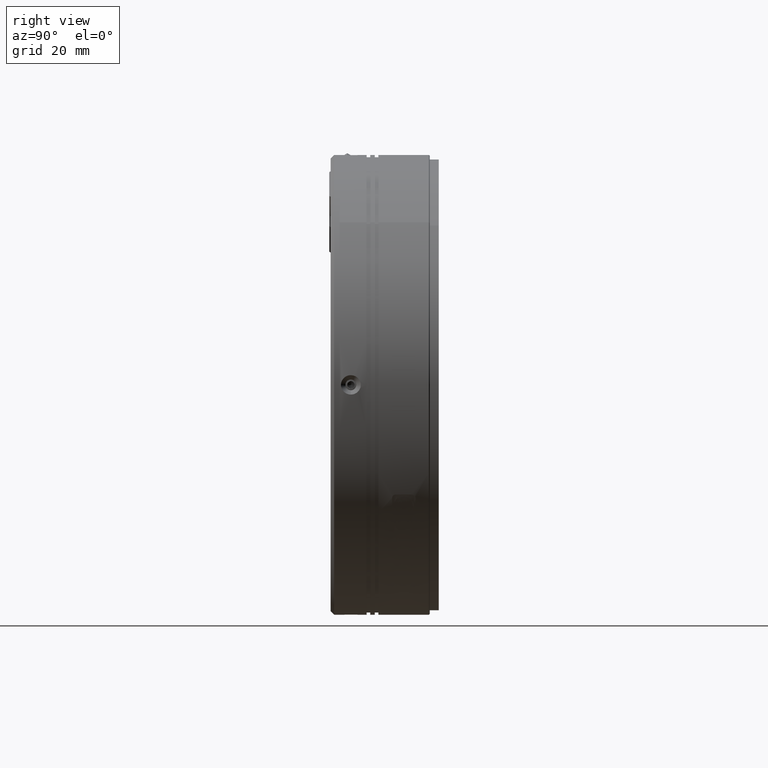
[diagram: clean part render]
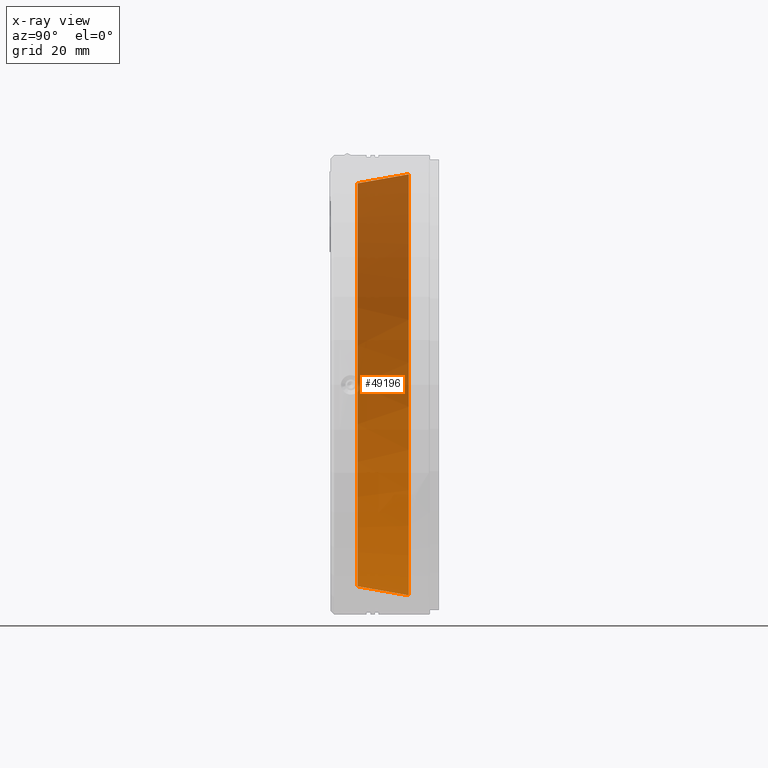
[diagram: x-ray — body ghosted, one internal face saturated and labeled with its STEP entity id]
A machine part, right view, then the same camera in x-ray: the body is ghosted and one INTERNAL B-rep face — a face not visible from any outside direction — is saturated and labeled: STEP entity #49196.
In plain terms, the highlighted conical surface has half-angle 10 deg.
Its self-contained STEP definition (entity closure, byte-faithful):
#2772 = DIRECTION ( 'NONE',  ( 0.0000000000000000000, 4.657292350432958600E-016, 1.000000000000000000 ) ) ;
#3306 = EDGE_CURVE ( 'NONE', #74489, #31421, #47639, .T. ) ;
#6771 = ORIENTED_EDGE ( 'NONE', *, *, #3306, .T. ) ;
#13582 = EDGE_CURVE ( 'NONE', #22919, #74489, #27341, .T. ) ;
#13858 = AXIS2_PLACEMENT_3D ( 'NONE', #18367, #69210, #25741 ) ;
#17751 = AXIS2_PLACEMENT_3D ( 'NONE', #89779, #46338, #2772 ) ;
#17986 = ORIENTED_EDGE ( 'NONE', *, *, #46678, .F. ) ;
#18367 = CARTESIAN_POINT ( 'NONE',  ( 3.317154506813025100E-013, 18.74971081375443300, 2.765813746307307400E-015 ) ) ;
#18387 = DIRECTION ( 'NONE',  ( -0.0000000000000000000, 1.000000000000000000, -0.0000000000000000000 ) ) ;
#19789 = CARTESIAN_POINT ( 'NONE',  ( -44.69696155060206900, 7.407147174518520700, 8.239612835763062900E-015 ) ) ;
#22919 = VERTEX_POINT ( 'NONE', #54903 ) ;
#25741 = DIRECTION ( 'NONE',  ( 0.0000000000000000000, 2.971882398124769400E-016, 1.000000000000000000 ) ) ;
#27341 = CIRCLE ( 'NONE', #78701, 44.69696155060245200 ) ;
#28043 = DIRECTION ( 'NONE',  ( -0.0000000000000000000, 1.000000000000000000, 0.0000000000000000000 ) ) ;
#31421 = VERTEX_POINT ( 'NONE', #79416 ) ;
#32229 = AXIS2_PLACEMENT_3D ( 'NONE', #64208, #28043, #57212 ) ;
#33735 = VECTOR ( 'NONE', #37706, 1000.000000000000000 ) ;
#37706 = DIRECTION ( 'NONE',  ( 2.126576849575684100E-017, 0.9848077530122093500, -0.1736481776669232000 ) ) ;
#38941 = ORIENTED_EDGE ( 'NONE', *, *, #13582, .T. ) ;
#39002 = EDGE_LOOP ( 'NONE', ( #17986, #38941, #6771, #70810, #85982 ) ) ;
#45864 = VERTEX_POINT ( 'NONE', #85650 ) ;
#45901 = VERTEX_POINT ( 'NONE', #72005 ) ;
#46338 = DIRECTION ( 'NONE',  ( -0.0000000000000000000, 1.000000000000000000, -0.0000000000000000000 ) ) ;
#46678 = EDGE_CURVE ( 'NONE', #22919, #45864, #89312, .T. ) ;
#47639 = CIRCLE ( 'NONE', #17751, 44.69696155060245200 ) ;
#49196 = ADVANCED_FACE ( 'NONE', ( #62923 ), #70836, .T. ) ;
#49291 = CARTESIAN_POINT ( 'NONE',  ( 3.317154506813025100E-013, 18.74971081375444700, 46.69696155060245200 ) ) ;
#54903 = CARTESIAN_POINT ( 'NONE',  ( 3.373117144506730100E-013, 7.407147174518520700, -44.69696155060245200 ) ) ;
#57212 = DIRECTION ( 'NONE',  ( 0.0000000000000000000, 0.0000000000000000000, 1.000000000000000000 ) ) ;
#61878 = LINE ( 'NONE', #49291, #72050 ) ;
#61905 = CARTESIAN_POINT ( 'NONE',  ( 3.317154506813025100E-013, 7.407147174518520700, 2.765813746307307400E-015 ) ) ;
#62923 = FACE_OUTER_BOUND ( 'NONE', #39002, .T. ) ;
#64208 = CARTESIAN_POINT ( 'NONE',  ( 3.317154506813025100E-013, 18.74971081375444700, 2.765813746307307400E-015 ) ) ;
#67102 = CARTESIAN_POINT ( 'NONE',  ( 3.374341791305877200E-013, 18.74971081375444700, -46.69696155060245200 ) ) ;
#69210 = DIRECTION ( 'NONE',  ( 0.0000000000000000000, -1.000000000000000000, 0.0000000000000000000 ) ) ;
#69231 = DIRECTION ( 'NONE',  ( 0.0000000000000000000, 4.657292350432958600E-016, 1.000000000000000000 ) ) ;
#70810 = ORIENTED_EDGE ( 'NONE', *, *, #70909, .T. ) ;
#70836 = CONICAL_SURFACE ( 'NONE', #32229, 46.69696155060245200, 0.1745329251994257000 ) ;
#70909 = EDGE_CURVE ( 'NONE', #31421, #45901, #61878, .T. ) ;
#72005 = CARTESIAN_POINT ( 'NONE',  ( 3.374341791305877200E-013, 18.74971081375443300, 46.69696155060237400 ) ) ;
#72050 = VECTOR ( 'NONE', #93392, 1000.000000000000000 ) ;
#74489 = VERTEX_POINT ( 'NONE', #19789 ) ;
#78701 = AXIS2_PLACEMENT_3D ( 'NONE', #61905, #18387, #69231 ) ;
#79416 = CARTESIAN_POINT ( 'NONE',  ( 3.317154506813025100E-013, 7.407147174518520700, 44.69696155060245200 ) ) ;
#85650 = CARTESIAN_POINT ( 'NONE',  ( 3.317154506813025100E-013, 18.74971081375443300, -46.69696155060237400 ) ) ;
#85982 = ORIENTED_EDGE ( 'NONE', *, *, #93919, .T. ) ;
#86193 = CIRCLE ( 'NONE', #13858, 46.69696155060245200 ) ;
#89312 = LINE ( 'NONE', #67102, #33735 ) ;
#89779 = CARTESIAN_POINT ( 'NONE',  ( 3.317154506813025100E-013, 7.407147174518520700, 2.765813746307307400E-015 ) ) ;
#93392 = DIRECTION ( 'NONE',  ( 0.0000000000000000000, 0.9848077530122093500, 0.1736481776669232000 ) ) ;
#93919 = EDGE_CURVE ( 'NONE', #45901, #45864, #86193, .T. ) ;